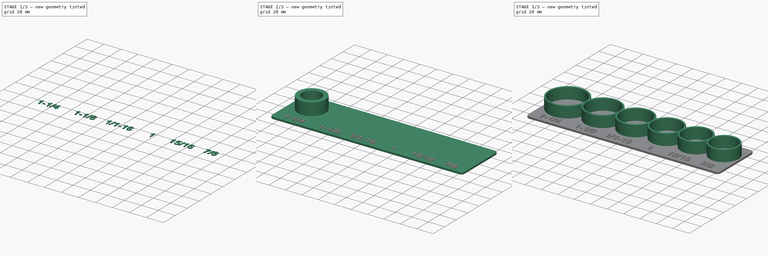
[diagram: build sequence overview — one tinted view per stage of 3, left to right]
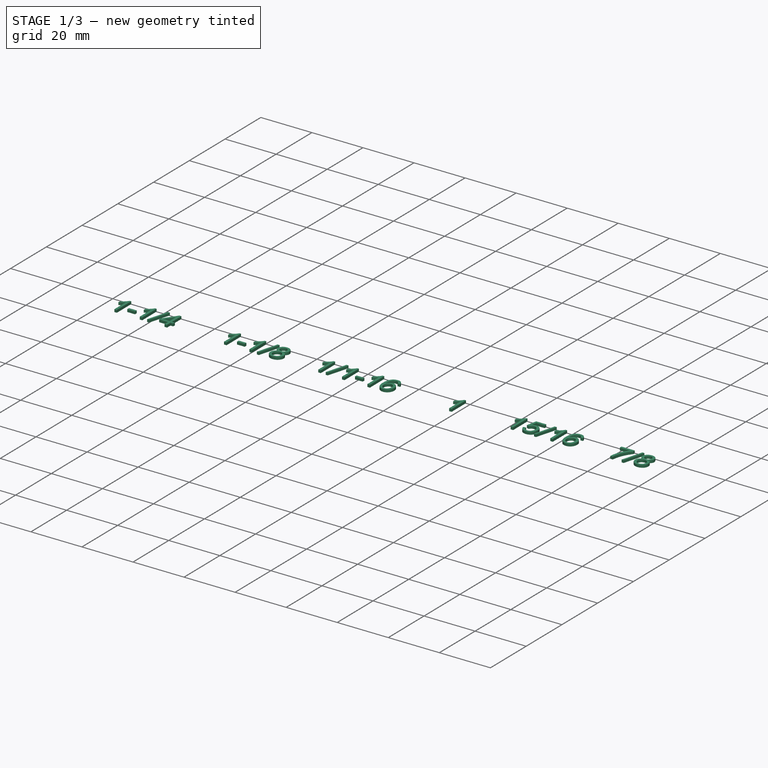
[diagram: stage 1 of 3 — iso view after this stage's code; geometry added in this stage tinted green]
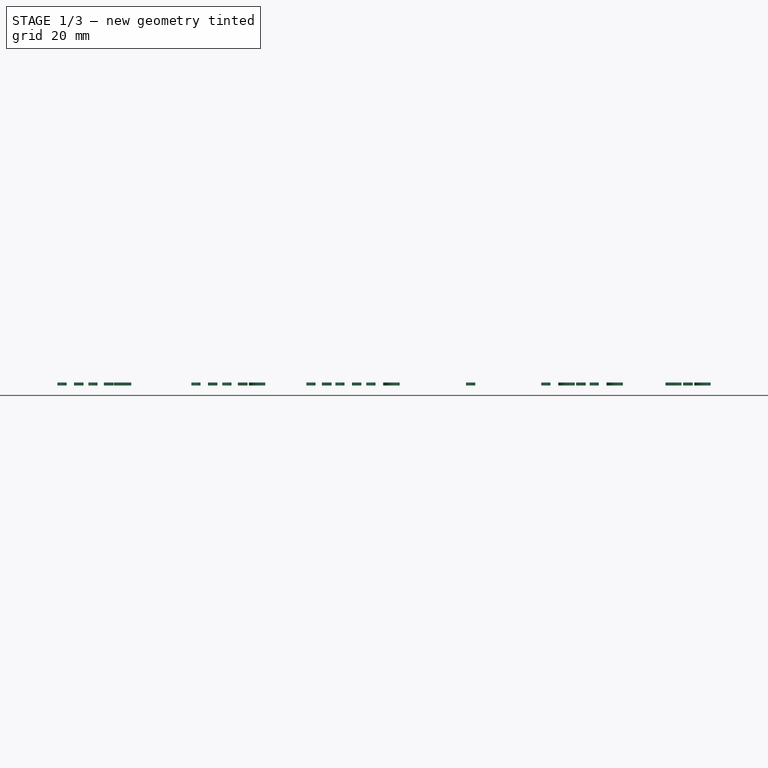
[diagram: stage 1 of 3 — front view after this stage's code; geometry added in this stage tinted green]
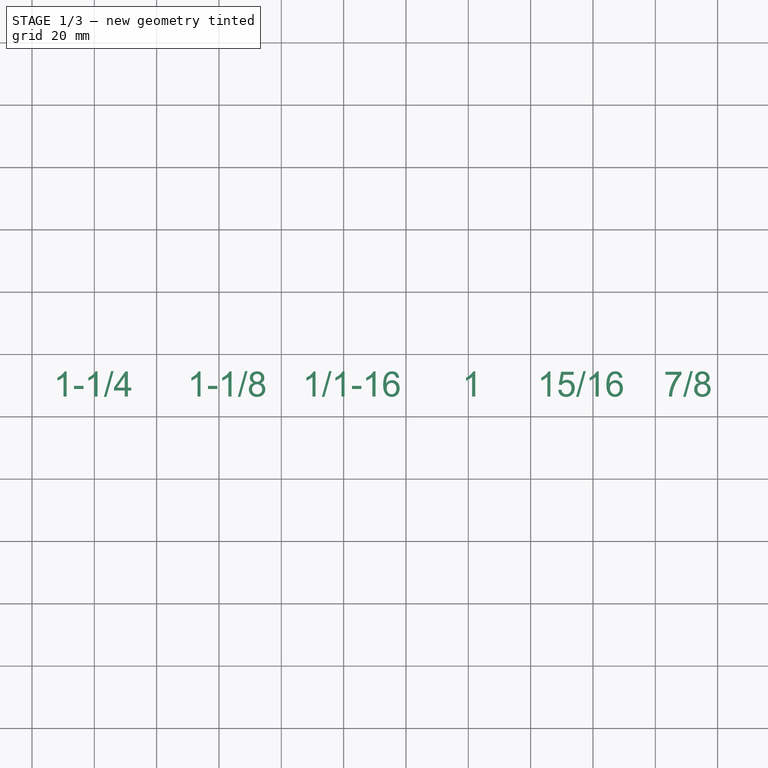
[diagram: stage 1 of 3 — top view after this stage's code; geometry added in this stage tinted green]
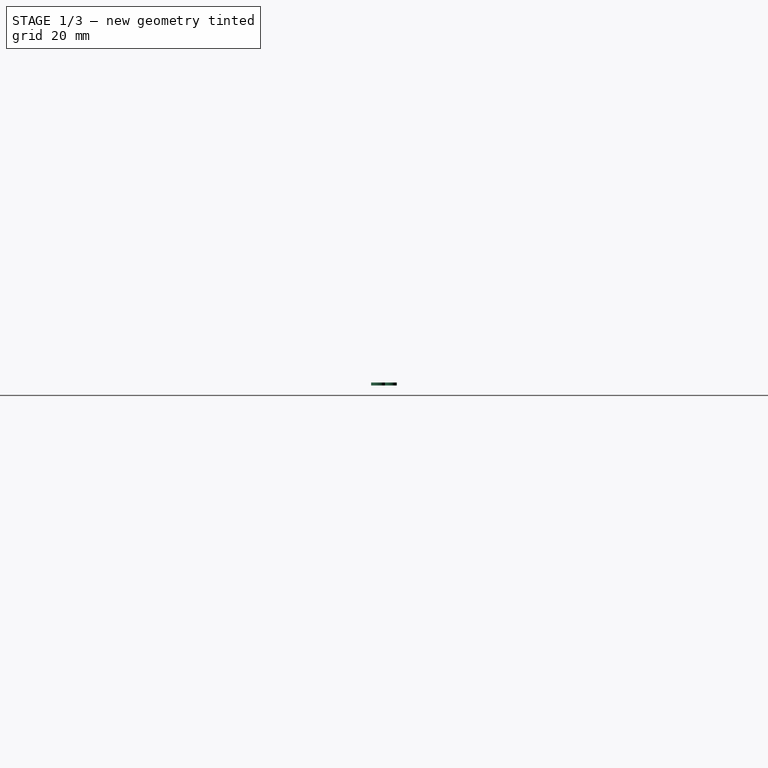
[diagram: stage 1 of 3 — right view after this stage's code; geometry added in this stage tinted green]
FCSTD DOCUMENT  (FreeCAD 0.22R38314 (Git))
Label: slim socket tray
License: All rights reserved
LicenseURL: http://en.wikipedia.org/wiki/All_rights_reserved
objects: Part::Extrusion×3, Sketcher::SketchObject×2, Part::Chamfer×2, Part::FeaturePython×2, Spreadsheet::Sheet×1, Part::Part2DObjectPython×1
note: 10 computed .brp shape members not serialized (recipe doc carries the construction recipe); baked Part::Feature solids carry a one-line shape summary decoded from their .brp

FEATURE [Part::Part2DObjectPython] ShapeString  # Draft 2D object (typed FeaturePython)
  FontFile = /System/Library/Fonts/Supplemental/Arial.ttf
  Fuse = false
  Justification = 1
  JustificationReference = 0
  KeepLeftMargin = false
  MakeFace = true
  ObliqueAngle = 0
  Placement = pos=(0,-25.5,0) rot=(0,0,1;0rad)
  ScaleToSize = true
  Size = 8
  String = 1-1/4
  Tracking = 0
  expr: .Placement.Base.y = <<q>>.text_y
  expr: Size = <<q>>.text_size
FEATURE [Part::Extrusion] Extrude  label="extruded text"
  Base = -> ShapeString
  Dir = (0,0,1)
  DirMode = 2
  FaceMakerClass = Part::FaceMakerBullseye
  FaceMakerMode = 3
  LengthFwd = 1
  LengthRev = 0
  Solid = false
  Symmetric = false
  expr: LengthFwd = <<q>>.text_thickness
FEATURE [Part::FeaturePython] ParaSeries002  label="text series"  # WARN: FeaturePython — macro-defined, semantics opaque (R4)
  Alignment = 0
  CellStart = E2
  Count = 7
  DistributionLaw = 0
  EndInclusive = true
  ExposePlacement = false
  GeneratorMode = 0
  MarkerShape = 1
  MarkerSize = 0
  NumElements = 0
  Object = -> Extrude
  ParameterRef = ShapeString.Placement.Base.x;ShapeString.String
  ParameterType = 2
  Recomputing = 0
  SpanEnd = 7
  SpanStart = 1
  SpreadsheetLink = -> Spreadsheet
  Step = 1
  Type = lattice2ParaSeries.LatticeParaSeries
  VSGVersion = 1
  Values = 0;1-1/4 | 43;1-1/8 | 83;1/1-16 | 120.75;1 | 156.5;15/16 | 190.5;7/8
  ValuesSource = 1
  isLattice = 0
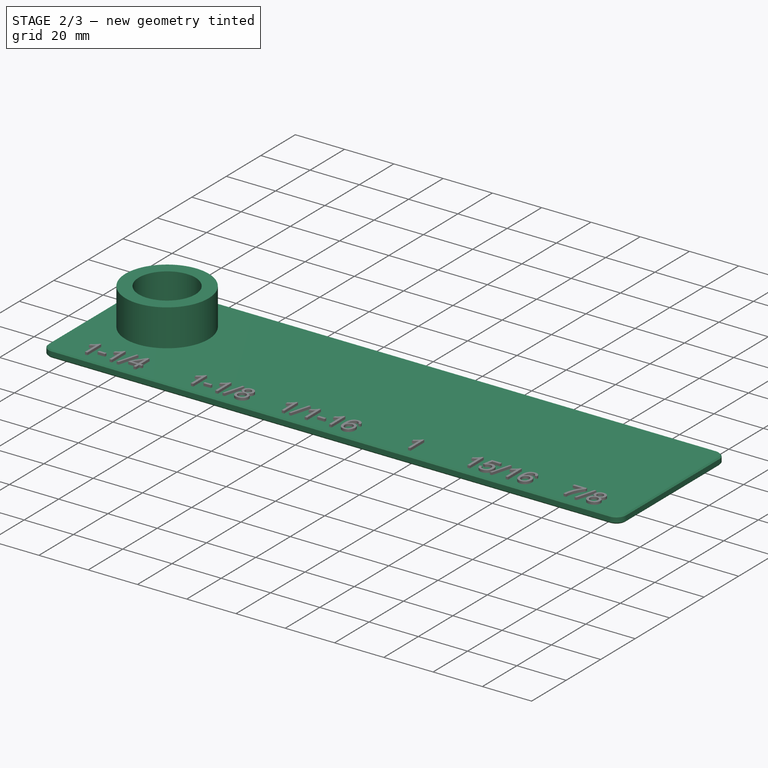
[diagram: stage 2 of 3 — iso view after this stage's code; geometry added in this stage tinted green]
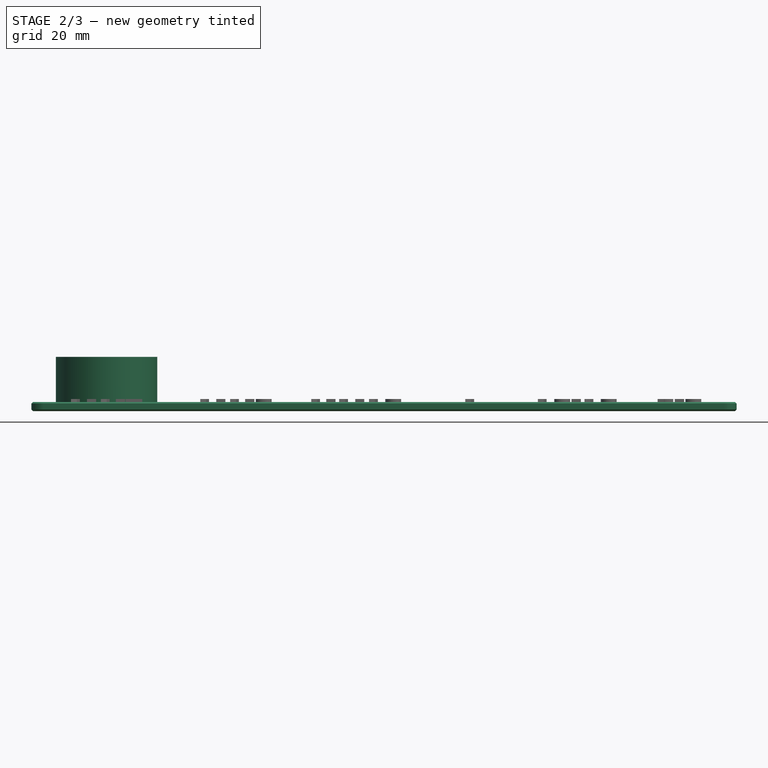
[diagram: stage 2 of 3 — front view after this stage's code; geometry added in this stage tinted green]
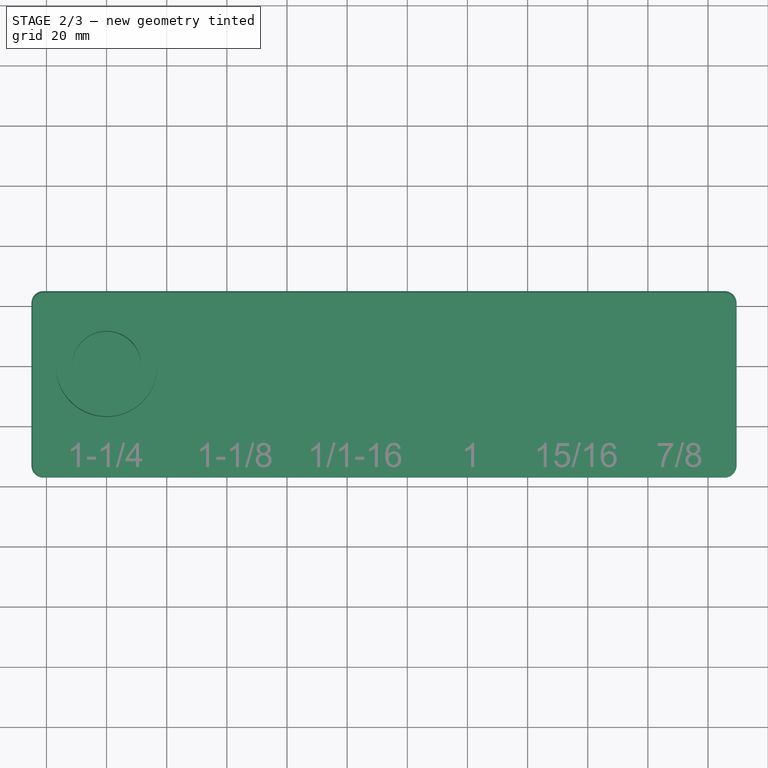
[diagram: stage 2 of 3 — top view after this stage's code; geometry added in this stage tinted green]
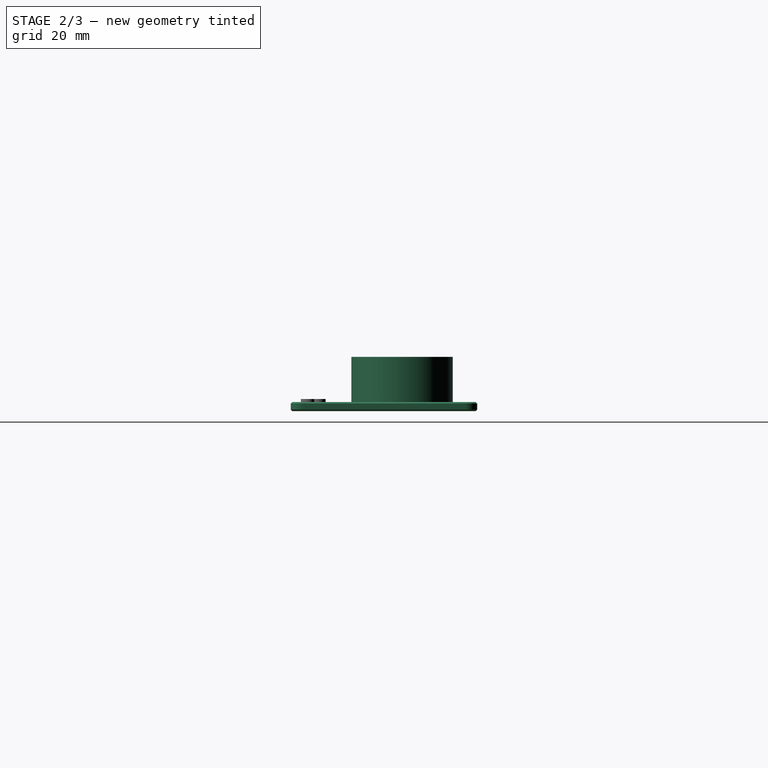
[diagram: stage 2 of 3 — right view after this stage's code; geometry added in this stage tinted green]
FEATURE [Spreadsheet::Sheet] Spreadsheet  label="q"
  cells = A1='offset socket; B1='offset text; D1='sockets; E1='text; G1='size; H1='text; I1='offsets; K1='count; A2==G2 > 0 ? <<%s;>> % I2 + <<%s>> % (G2 + socket_margin) : <<>>; B2==G2 > 0 ? <<%s;>> % I2 + H2 : <<>>; D2==<<%s;>> % I2 + <<%s;>> % (G2 + socket_margin) + <<%s>> % (G2 + 2 * wall + socket_margin); E2==G2 > 0 ? <<%s;>> % I2 + H2 : <<>>; G2==.J23; H2==.K23; I2=0; K2==G2 > 0 ? 1 : 0; M2='spacing; N2(spacing)==wall + 1; A3==G3 > 0 ? <<%s;>> % I3 + <<%s>> % (G3 + socket_margin) : <<>>; B3==G3 > 0 ? <<%s;>> % I3 + H3 : <<>>; D3==<<%s;>> % I3 + <<%s;>> % (G3 + socket_margin) + <<%s>> % (G3 + 2 * wall + socket_margin); E3==G3 > 0 ? <<%s;>> % I3 + H3 : <<>>; G3==.J24; H3==.K24; I3==G3 > 0 ? G2 / 2 + G3 / 2 + spacing : << >>; K3==G3 > 0 ? 1 : 0; M3='length; N3(length)==sum(G2:G19) + (items + 1) * spacing + wall; A4==G4 > 0 ? <<%s;>> % I4 + <<%s>> % (G4 + socket_margin) : <<>>; B4==G4 > 0 ? <<%s;>> % I4 + H4 : <<>>; D4==<<%s;>> % I4 + <<%s;>> % (G4 + socket_margin) + <<%s>> % (G4 + 2 * wall + socket_margin); E4==G4 > 0 ? <<%s;>> % I4 + H4 : <<>>; G4==.J25; H4==.K25; I4==G4 > 0 ? G3 / 2 + G4 / 2 + I3 + spacing : << >>; K4==G4 > 0 ? 1 : 0; M4='depth; N4(depth)==max(G2:G19) + 2 * spacing + text_pad; A5==G5 > 0 ? <<%s;>> % I5 + <<%s>> % (G5 + socket_margin) : <<>>; B5==G5 > 0 ? <<%s;>> % I5 + H5 : <<>>; D5==<<%s;>> % I5 + <<%s;>> % (G5 + socket_margin) + <<%s>> % (G5 + 2 * wall + socket_margin); E5==G5 > 0 ? <<%s;>> % I5 + H5 : <<>>; G5==.J26; H5==.K26; I5==G5 > 0 ? G4 / 2 + G5 / 2 + I4 + spacing : << >>; K5==G5 > 0 ? 1 : 0; M5='left offset; N5(left_offset)==G2 / 2 + spacing; A6==G6 > 0 ? <<%s;>> % I6 + <<%s>> % (G6 + socket_margin) : <<>>; B6==G6 > 0 ? <<%s;>> % I6 + H6 : <<>>; D6==<<%s;>> % I6 + <<%s;>> % (G6 + socket_margin) + <<%s>> % (G6 + 2 * wall + socket_margin); E6==G6 > 0 ? <<%s;>> % I6 + H6 : <<>>; G6==.J27; H6==.K27; I6==G6 > 0 ? G5 / 2 + G6 / 2 + I5 + spacing : << >>; K6==G6 > 0 ? 1 : 0; A7==G7 > 0 ? <<%s;>> % I7 + <<%s>> % (G7 + socket_margin) : <<>>; B7==G7 > 0 ? <<%s;>> % I7 + H7 : <<>>; D7==<<%s;>> % I7 + <<%s;>> % (G7 + socket_margin) + <<%s>> % (G7 + 2 * wall + socket_margin); E7==G7 > 0 ? <<%s;>> % I7 + H7 : <<>>; G7==.J28; H7==.K28; I7==G7 > 0 ? G6 / 2 + G7 / 2 + I6 + spacing : << >>; K7==G7 > 0 ? 1 : 0; M7='text pad; N7(text_pad)=14; A8==G8 > 0 ? <<%s;>> % I8 + <<%s>> % (G8 + socket_margin) : <<>>; B8==G8 > 0 ? <<%s;>> % I8 + H8 : <<>>; G8==.J29; I8==G8 > 0 ? G7 / 2 + G8 / 2 + I7 + spacing : << >>; K8==G8 > 0 ? 1 : 0; M8='radius; N8(radius)=4; A9==G9 > 0 ? <<%s;>> % I9 + <<%s>> % (G9 + socket_margin) : <<>>; B9==G9 > 0 ? <<%s;>> % I9 + H9 : <<>>; G9==.J30; I9==G9 > 0 ? G8 / 2 + G9 / 2 + I8 + spacing : << >>; K9==G9 > 0 ? 1 : 0; M9='box height; N9(box_height)=3; A10==G10 > 0 ? <<%s;>> % I10 + <<%s>> % (G10 + socket_margin) : <<>>; B10==G10 > 0 ? <<%s;>> % I10 + H10 : <<>>; G10==.J31; I10==G10 > 0 ? G9 / 2 + G10 / 2 + I9 + spacing : << >>; K10==G10 > 0 ? 1 : 0; M10='socket depth; N10(socket_depth)=15; A11==G11 > 0 ? <<%s;>> % I11 + <<%s>> % (G11 + socket_margin) : <<>>; B11==G11 > 0 ? <<%s;>> % I11 + H11 : <<>>; G11==.J32; I11==G11 > 0 ? G10 / 2 + G11 / 2 + I10 + spacing : << >>; K11==G11 > 0 ? 1 : 0; M11='socket floor; N11(socket_floor)=2; A12==G12 > 0 ? <<%s;>> % I12 + <<%s>> % (G12 + socket_margin) : <<>>; B12==G12 > 0 ? <<%s;>> % I12 + H12 : <<>>; G12==.J33; I12==G12 > 0 ? G11 / 2 + G12 / 2 + I11 + spacing : << >>; K12==G12 > 0 ? 1 : 0; M12='socket margin; N12(socket_margin)=1; A13==G13 > 0 ? <<%s;>> % I13 + <<%s>> % (G13 + socket_margin) : <<>>; B13==G13 > 0 ? <<%s;>> % I13 + H13 : <<>>; G13==.J34; I13==G13 > 0 ? G12 / 2 + G13 / 2 + I12 + spacing : << >>; K13==G13 > 0 ? 1 : 0; M13='wall; N13(wall)=2; A14==G14 > 0 ? <<%s;>> % I14 + <<%s>> % (G14 + socket_margin) : <<>>; B14==G14 > 0 ? <<%s;>> % I14 + H14 : <<>>; G14==.J35; I14==G14 > 0 ? G13 / 2 + G14 / 2 + I13 + spacing : << >>; K14==G14 > 0 ? 1 : 0; M14='items; N14(items)==sum(K2:K19); A15==G15 > 0 ? <<%s;>> % I15 + <<%s>> % (G15 + socket_margin) : <<>>; B15==G15 > 0 ? <<%s;>> % I15 + H15 : <<>>; G15==.J36; I15==G15 > 0 ? G14 / 2 + G15 / 2 + I14 + spacing : << >>; K15==G15 > 0 ? 1 : 0; M15='text size; N15(text_size)=8; A16==G16 > 0 ? <<%s;>> % I16 + <<%s>> % (G16 + socket_margin) : <<>>; B16==G16 > 0 ? <<%s;>> % I16 + H16 : <<>>; G16==.J37; I16==G16 > 0 ? G15 / 2 + G16 / 2 + I15 + spacing : << >>; K16==G16 > 0 ? 1 : 0; M16='text y; N16(text_y)==-G2 / 2 - spacing * 1.5; A17==G17 > 0 ? <<%s;>> % I17 + <<%s>> % (G17 + socket_margin) : <<>>; B17==G17 > 0 ? <<%s;>> % I17 + H17 : <<>>; G17==.J38; I17==G17 > 0 ? G16 / 2 + G17 / 2 + I16 + spacing : << >>; K17==G17 > 0 ? 1 : 0; M17='text z; N17(text_z)=0; A18==G18 > 0 ? <<%s;>> % I18 + <<%s>> % (G18 + socket_margin) : <<>>; B18==G18 > 0 ? <<%s;>> % I18 + H18 : <<>>; G18==.J39; I18==G18 > 0 ? G17 / 2 + G18 / 2 + I17 + spacing : << >>; K18==G18 > 0 ? 1 : 0; M18='text thickness; N18(text_thickness)=1; A19==G19 > 0 ? <<%s;>> % I19 + <<%s>> % (G19 + socket_margin) : <<>>; B19==G19 > 0 ? <<%s;>> % I19 + H19 : <<>>; G19==.J40; I19==G19 > 0 ? G18 / 2 + G19 / 2 + I18 + spacing : << >>; K19==G19 > 0 ? 1 : 0; A22='large 1/2 drive; G22='small 1/2 drive; J22='extra 1/2; M22='copy and fill to create another; A23=50; B23='1-1/2; G23=28.5; H23='13/16; J23=42; K23='1-1/4; M23=0; A24=42; B24='1-1/4; G24=27.5; H24='25/32; J24=38; K24='1-1/8; M24=0; A25=38; B25='1-1/8; G25=26.5; H25='3/4; J25=36; K25='1/1-16; M25=0; A26=36; B26='1/1-16; G26=24.5; H26='11/16; J26=33.5; K26='1; M26=0; A27=33.5; B27='1; G27=23; H27='21/32; J27=32; K27='15/16; M27=0; A28=32; B28='15/16; G28=22; H28='5/8; J28=30; K28='7/8; M28=0; A29=30; B29='7/8; G29=22; H29='19/32; J29=0; M29=0; +51 more cells
FEATURE [Sketcher::SketchObject] Sketch002  label="walled socket"
  FullyConstrained = true
  sketch-geometry (2):
    g0: Circle CenterX=0 CenterY=0 CenterZ=0 NormalX=0 NormalY=0 NormalZ=1 AngleXU=0 Radius=11.5
    g1: Circle CenterX=0 CenterY=0 CenterZ=0 NormalX=0 NormalY=0 NormalZ=1 AngleXU=0 Radius=16.865
  constraints (4):
    c: Coincident(g0,g-1)
    c: Diameter(g0) = 23  'SocketDiameter'
    c: Coincident(g1,g0)
    c: Diameter(g1) = 33.73  'SocketDiameter2'
FEATURE [Part::Extrusion] Extrude002
  Base = -> Sketch002
  Dir = (0,0,1)
  DirMode = 2
  FaceMakerClass = Part::FaceMakerBullseye
  FaceMakerMode = 3
  LengthFwd = 15
  LengthRev = 0
  Solid = true
  Symmetric = false
  expr: LengthFwd = <<q>>.socket_depth
FEATURE [Sketcher::SketchObject] Sketch003
  FullyConstrained = true
  expr: Constraints[20] = <<q>>.G2 / 2 + <<q>>.wall * 2
  expr: Constraints[21] = <<q>>.G2 / 2 + <<q>>.wall * 2
  expr: Constraints[22] = <<q>>.G2 / 2 + <<q>>.wall * 4 + <<q>>.text_size
  expr: Constraints[26] = <<q>>.radius
  expr: Constraints[27] = <<q>>.length
  sketch-geometry (12):
    g0: LineSegment StartX=-25 StartY=21 StartZ=0 EndX=-25 EndY=-33 EndZ=0
    g1: LineSegment StartX=-21 StartY=-37 StartZ=0 EndX=205.5 EndY=-37 EndZ=0
    g2: LineSegment StartX=209.5 StartY=-33 StartZ=0 EndX=209.5 EndY=21 EndZ=0
    g3: LineSegment StartX=205.5 StartY=25 StartZ=0 EndX=-21 EndY=25 EndZ=0
    g4: ArcOfCircle CenterX=205.5 CenterY=21 CenterZ=0 NormalX=0 NormalY=0 NormalZ=1 AngleXU=0 Radius=4 StartAngle=3e-16 EndAngle=1.5708
    g5: GeomPoint X=209.5 Y=25 Z=0
    g6: ArcOfCircle CenterX=205.5 CenterY=-33 CenterZ=0 NormalX=0 NormalY=0 NormalZ=1 AngleXU=0 Radius=4 StartAngle=4.71239 EndAngle=6.28319
    g7: GeomPoint X=209.5 Y=-37 Z=0
    g8: ArcOfCircle CenterX=-21 CenterY=-33 CenterZ=0 NormalX=0 NormalY=0 NormalZ=1 AngleXU=0 Radius=4 StartAngle=3.14159 EndAngle=4.71239
    g9: GeomPoint X=-25 Y=-37 Z=0
    g10: ArcOfCircle CenterX=-21 CenterY=21 CenterZ=0 NormalX=0 NormalY=0 NormalZ=1 AngleXU=0 Radius=4 StartAngle=1.5708 EndAngle=3.14159
    g11: GeomPoint X=-25 Y=25 Z=0
  constraints (28):
    c: Vertical(g0)
    c: Vertical(g2)
    c: Horizontal(g1)
    c: Horizontal(g3)
    c: PointOnObject(g5,g2)
    c: PointOnObject(g5,g3)
    c: Tangent(g2,g4) = -1.5708
    c: Tangent(g3,g4) = -1.5708
    c: PointOnObject(g7,g2)
    c: PointOnObject(g7,g1)
    c: Tangent(g2,g6) = -1.5708
    c: Tangent(g1,g6) = -1.5708
    c: PointOnObject(g9,g1)
    c: PointOnObject(g9,g0)
    c: Tangent(g1,g8) = -1.5708
    c: Tangent(g0,g8) = -1.5708
    c: PointOnObject(g11,g0)
    c: PointOnObject(g11,g3)
    c: Tangent(g0,g10) = -1.5708
    c: Tangent(g3,g10) = -1.5708
    c: DistanceY(g-1,g3) = 25
    c: DistanceX(g0,g-1) = 25
    c: DistanceY(g1,g-1) = 37
    c: Equal(g4,g6)
    c: Equal(g4,g8)
    c: Equal(g4,g10)
    c: Radius(g4) = 4
    c: DistanceX(g0,g2) = 234.5
FEATURE [Part::Extrusion] Extrude003  label="base"
  Base = -> Sketch003
  Dir = (0,0,1)
  DirMode = 2
  FaceMakerClass = Part::FaceMakerBullseye
  FaceMakerMode = 3
  LengthFwd = 3
  LengthRev = 0
  Reversed = true
  Solid = true
  Symmetric = false
  expr: LengthFwd = <<q>>.box_height
FEATURE [Part::Chamfer] Chamfer001  label="chamfered base"
  Base = -> Extrude003
  EdgeLinks = -> Extrude003 [Edge3,Edge4,Edge6,Edge7,Edge9,Edge10,Edge12,Edge13,Edge15,Edge16,Edge18,Edge19,Edge21,Edge22,Edge23,Edge24]
  Edges = 16 edges r=0.5: [Edge3,Edge4,Edge6,Edge7,Edge9,Edge10,Edge12,Edge13,Edge15,Edge16,Edge18,Edge19,Edge21,Edge22,Edge23,Edge24]
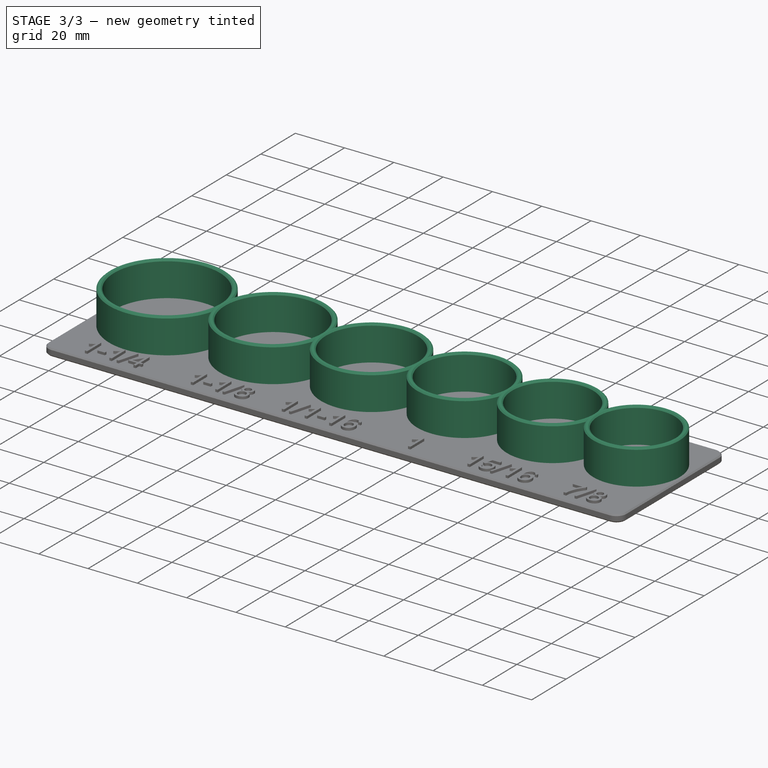
[diagram: stage 3 of 3 — iso view after this stage's code; geometry added in this stage tinted green]
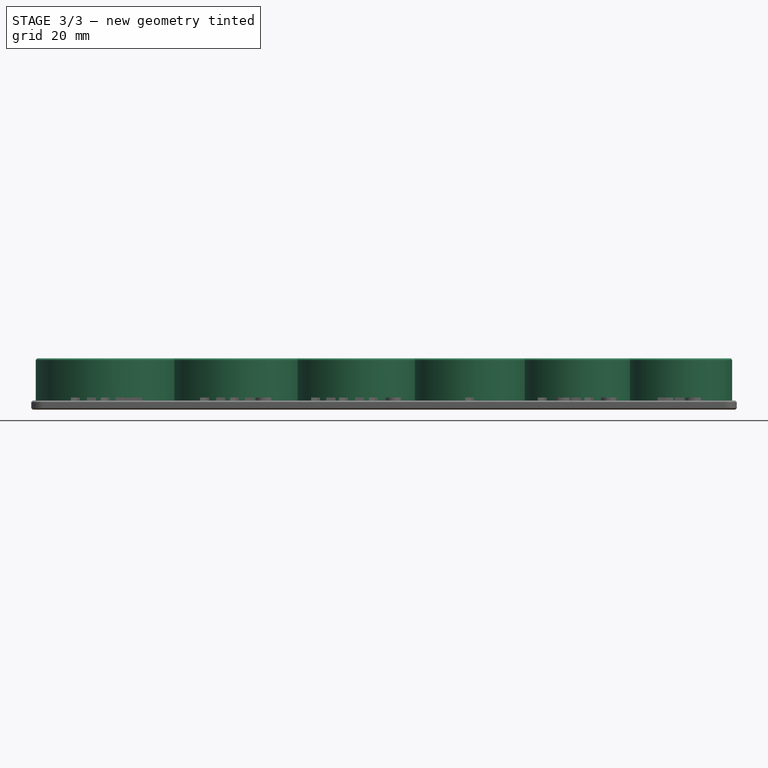
[diagram: stage 3 of 3 — front view after this stage's code; geometry added in this stage tinted green]
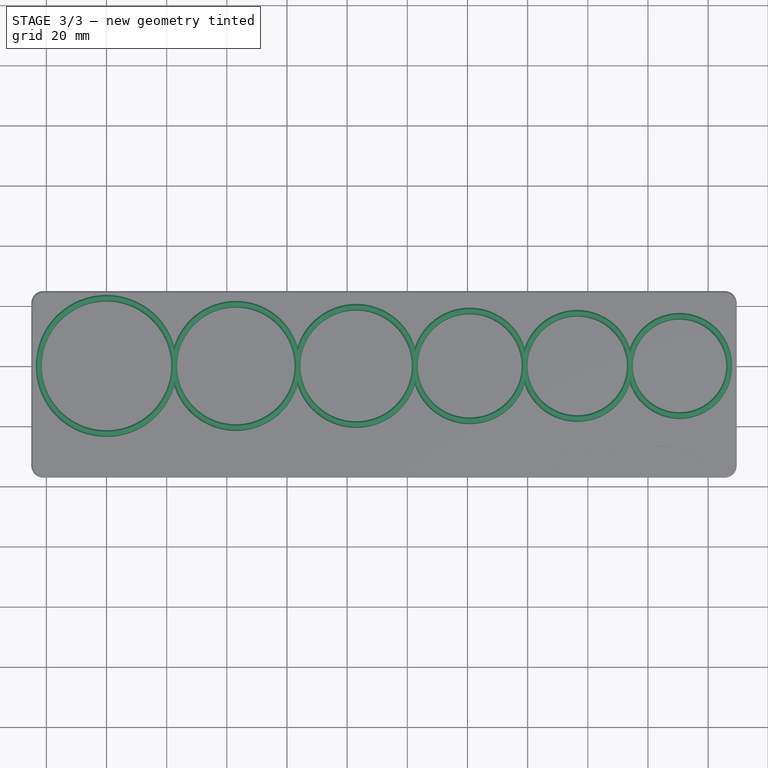
[diagram: stage 3 of 3 — top view after this stage's code; geometry added in this stage tinted green]
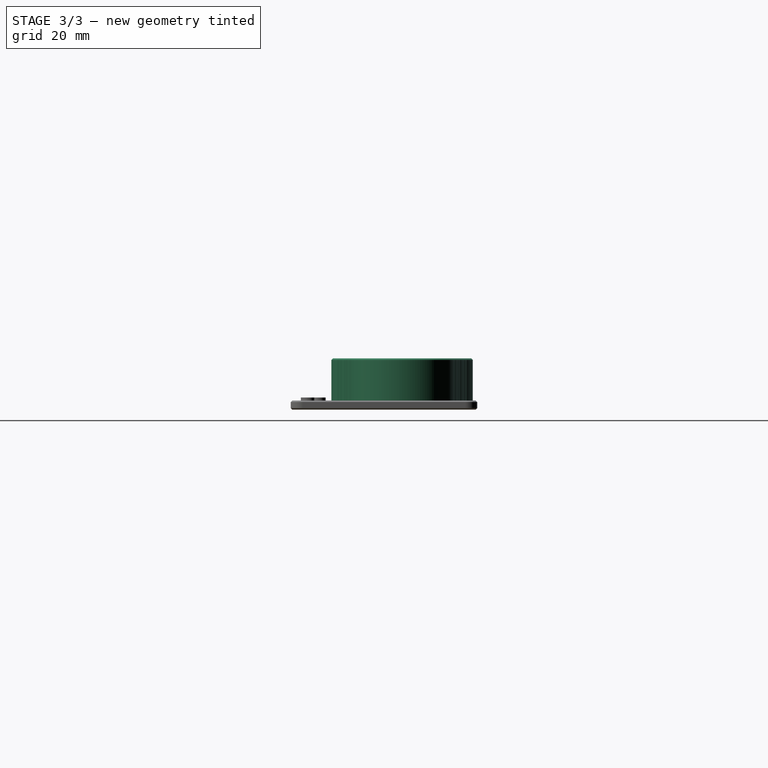
[diagram: stage 3 of 3 — right view after this stage's code; geometry added in this stage tinted green]
FEATURE [Part::Chamfer] Chamfer  label="chamfered socket"
  Base = -> Extrude002
  EdgeLinks = -> Extrude002 [Edge3,Edge6]
  Edges = 2 edges r=0.5: [Edge3,Edge6]
FEATURE [Part::FeaturePython] ParaSeries001  label="walled socket series"  # WARN: FeaturePython — macro-defined, semantics opaque (R4)
  Alignment = 0
  CellStart = D2
  Count = 7
  DistributionLaw = 0
  EndInclusive = true
  ExposePlacement = false
  GeneratorMode = 0
  MarkerShape = 1
  MarkerSize = 0
  NumElements = 0
  Object = -> Chamfer
  ParameterRef = Sketch002.Placement.Base.x;Sketch002.Constraints.SocketDiameter;Sketch002.Constraints.SocketDiameter2
  ParameterType = 0
  Placement = pos=(0,0,-1) rot=(0,0,1;0rad)
  Recomputing = 0
  SpanEnd = 7
  SpanStart = 1
  SpreadsheetLink = -> Spreadsheet
  Step = 1
  Type = lattice2ParaSeries.LatticeParaSeries
  VSGVersion = 1
  Values = 0;43;47 | 43;39;43 | 83;37;41 | 120.75;34.5;38.5 | 156.5;33;37 | 190.5;31;35
  ValuesSource = 1
  isLattice = 0
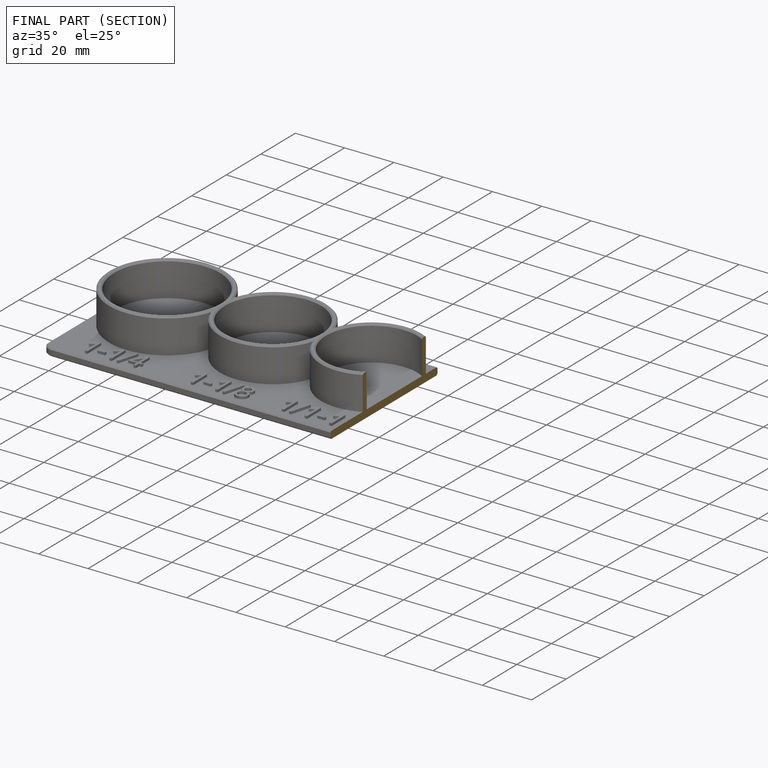
[diagram: finished part — half-section view (interior)]
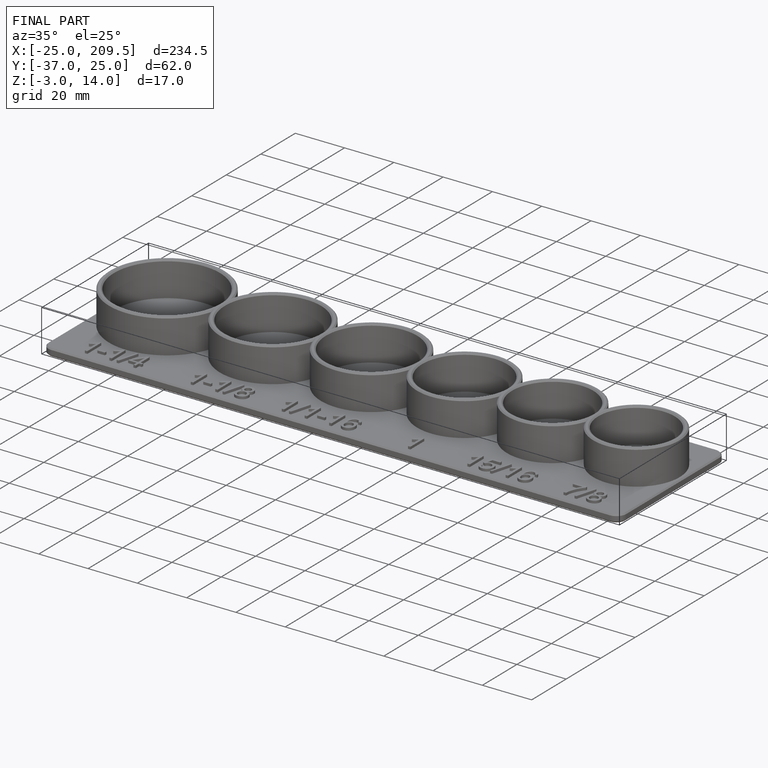
[diagram: finished part — iso view with bounding-box wireframe]
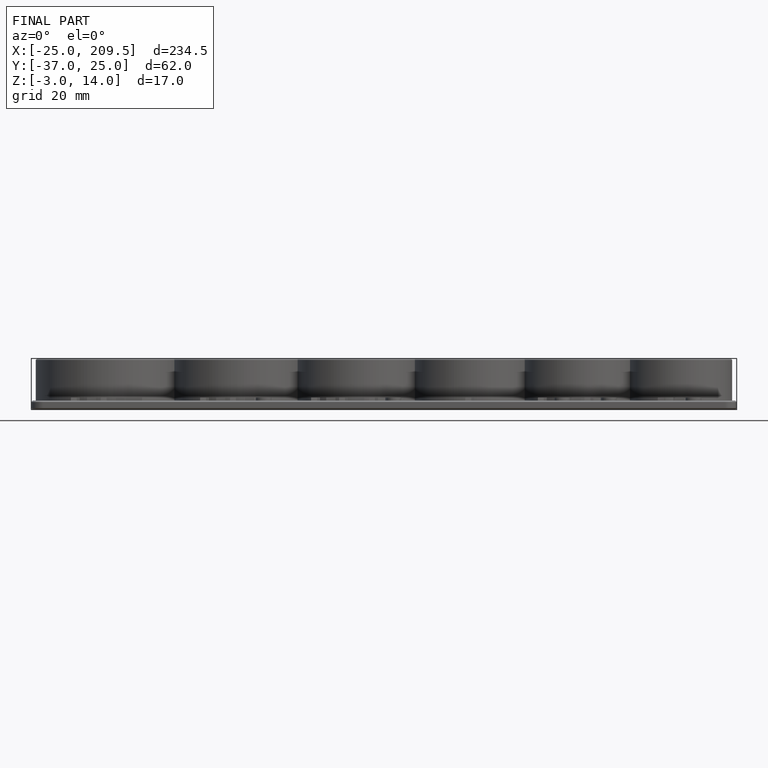
[diagram: finished part — front view with bounding-box wireframe]
